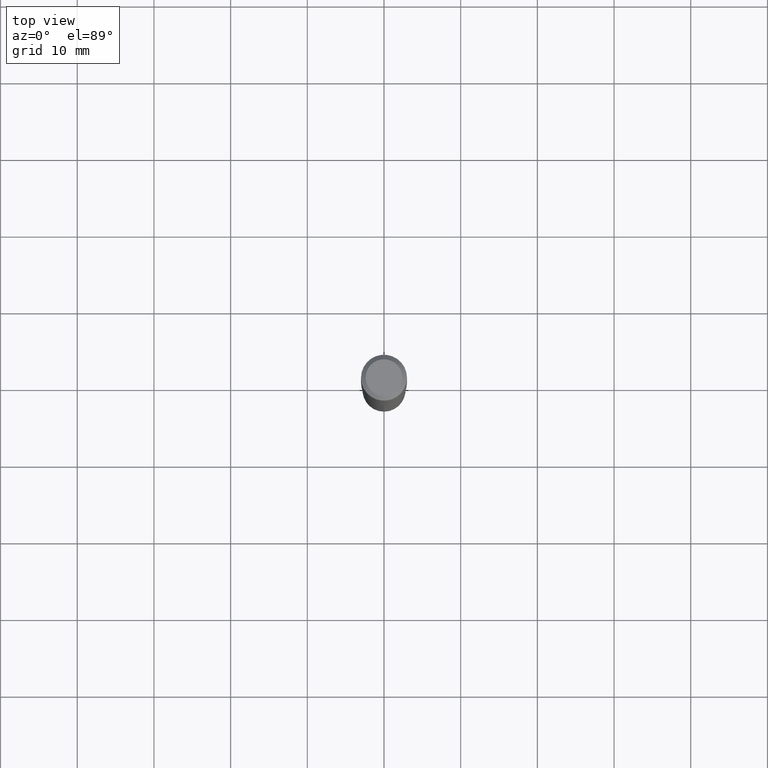
[diagram: clean part render]
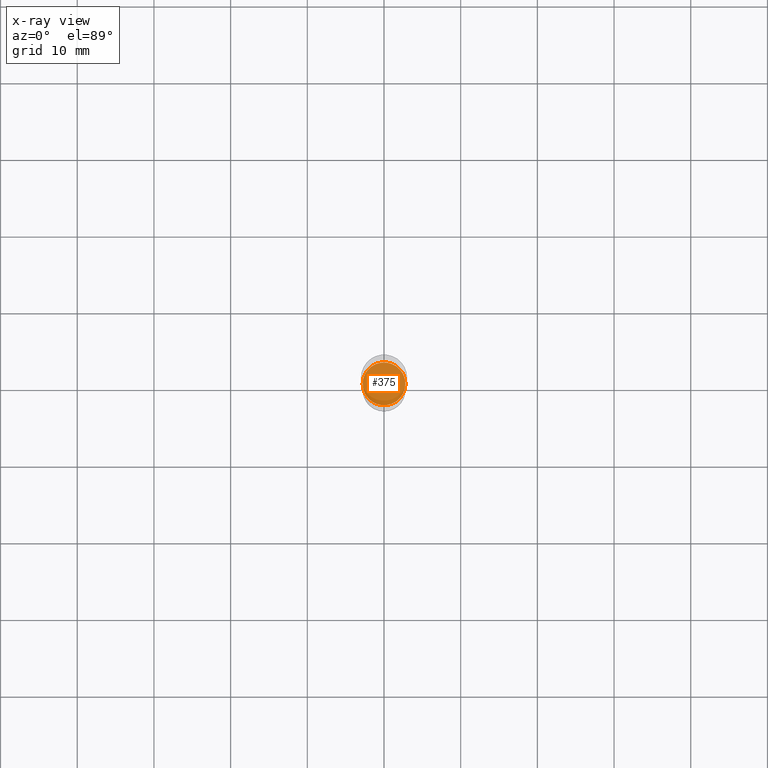
[diagram: x-ray — body ghosted, one internal face saturated and labeled with its STEP entity id]
A machine part, top view, then the same camera in x-ray: the body is ghosted and one INTERNAL B-rep face — a face not visible from any outside direction — is saturated and labeled: STEP entity #375.
In plain terms, the highlighted planar face has unit normal (-0, 0, 1).
Its self-contained STEP definition (entity closure, byte-faithful):
#4 = CIRCLE ( 'NONE', #447, 0.1097500000000000003 ) ;
#6 = AXIS2_PLACEMENT_3D ( 'NONE', #230, #418, #342 ) ;
#44 = FACE_OUTER_BOUND ( 'NONE', #219, .T. ) ;
#51 = CIRCLE ( 'NONE', #279, 0.1097500000000000003 ) ;
#81 = DIRECTION ( 'NONE',  ( -2.445468806185136597E-29, 3.491481338843145583E-15, 1.000000000000000000 ) ) ;
#96 = ORIENTED_EDGE ( 'NONE', *, *, #173, .F. ) ;
#107 = VERTEX_POINT ( 'NONE', #192 ) ;
#122 = PLANE ( 'NONE',  #6 ) ;
#151 = DIRECTION ( 'NONE',  ( -2.445468806185136597E-29, 3.491481338843145583E-15, 1.000000000000000000 ) ) ;
#152 = EDGE_CURVE ( 'NONE', #296, #107, #4, .T. ) ;
#173 = EDGE_CURVE ( 'NONE', #107, #296, #51, .T. ) ;
#182 = CARTESIAN_POINT ( 'NONE',  ( -0.1097500000000000003, -5.678167189724537898E-15, -1.850400000000000489 ) ) ;
#192 = CARTESIAN_POINT ( 'NONE',  ( 0.1097500000000000003, -7.227017223271426830E-15, -1.850400000000000489 ) ) ;
#219 = EDGE_LOOP ( 'NONE', ( #96, #489 ) ) ;
#225 = DIRECTION ( 'NONE',  ( 1.000000000000000000, -6.982962677686264344E-15, 0.000000000000000000 ) ) ;
#227 = DIRECTION ( 'NONE',  ( 1.000000000000000000, -6.982962677686264344E-15, 0.000000000000000000 ) ) ;
#230 = CARTESIAN_POINT ( 'NONE',  ( 1.308789617312019754E-29, -1.106657012404351745E-14, -1.850400000000000489 ) ) ;
#279 = AXIS2_PLACEMENT_3D ( 'NONE', #419, #81, #225 ) ;
#296 = VERTEX_POINT ( 'NONE', #182 ) ;
#337 = CARTESIAN_POINT ( 'NONE',  ( 4.525095478964977954E-29, -6.460637069395358365E-15, -1.850400000000000489 ) ) ;
#342 = DIRECTION ( 'NONE',  ( 1.000000000000000000, -6.982962677686265922E-15, 4.876176775795935793E-29 ) ) ;
#375 = ADVANCED_FACE ( 'NONE', ( #44 ), #122, .F. ) ;
#418 = DIRECTION ( 'NONE',  ( -2.438088387897960049E-29, 3.491481338843145188E-15, 1.000000000000000000 ) ) ;
#419 = CARTESIAN_POINT ( 'NONE',  ( 4.525095478964977954E-29, -6.460637069395358365E-15, -1.850400000000000489 ) ) ;
#447 = AXIS2_PLACEMENT_3D ( 'NONE', #337, #151, #227 ) ;
#489 = ORIENTED_EDGE ( 'NONE', *, *, #152, .F. ) ;